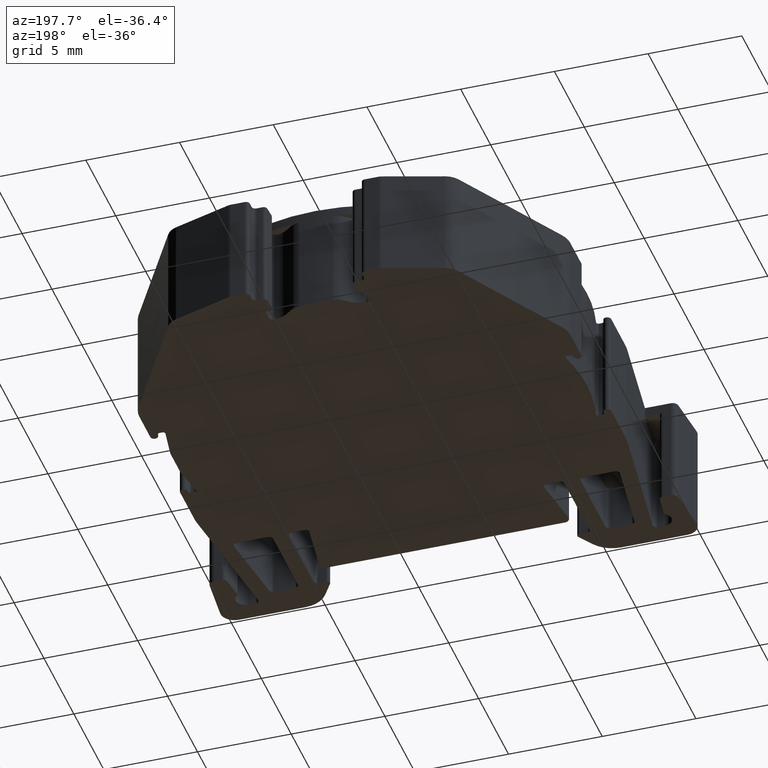
[diagram: clean part render]
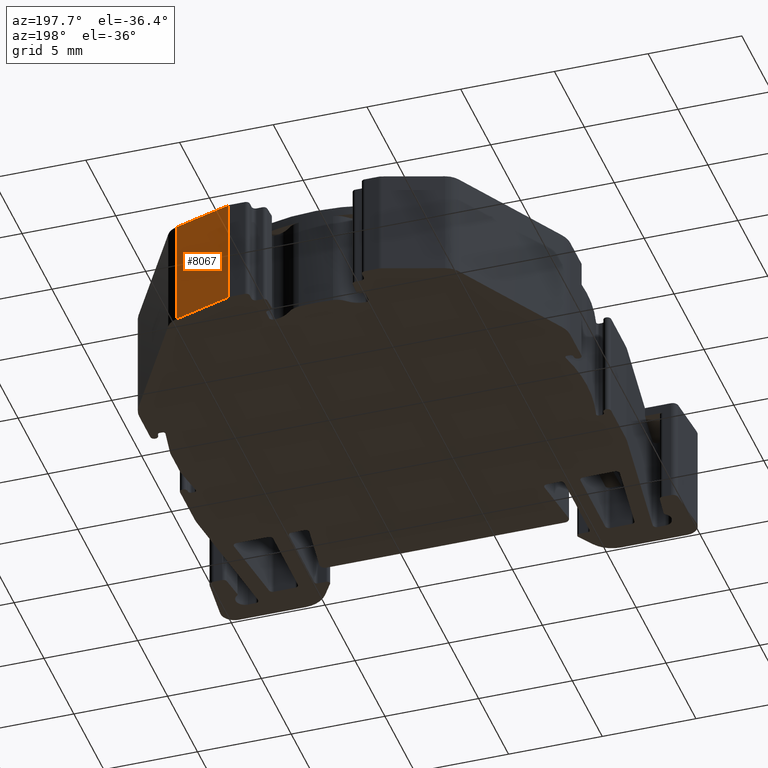
[diagram: same view with one face highlighted and labeled with its STEP entity id]
A machine part, auxiliary view. The second image highlights one B-rep face of the part: STEP entity #8067.
In plain terms, the highlighted planar face has unit normal (-0.3007, -0.9537, 0).
Its self-contained STEP definition (entity closure, byte-faithful):
#454 = CARTESIAN_POINT ( 'NONE',  ( 1189.995789931909940, 604.9167956440979879, 0.000000000000000000 ) ) ;
#893 = CARTESIAN_POINT ( 'NONE',  ( 1186.911258313420149, 605.8893447276670940, 5.799999999999999822 ) ) ;
#980 = EDGE_CURVE ( 'NONE', #7206, #6702, #5837, .T. ) ;
#1315 = EDGE_CURVE ( 'NONE', #6702, #5646, #8441, .T. ) ;
#1359 = PLANE ( 'NONE',  #7040 ) ;
#1533 = VECTOR ( 'NONE', #1580, 1000.000000000000000 ) ;
#1556 = LINE ( 'NONE', #893, #8704 ) ;
#1580 = DIRECTION ( 'NONE',  ( 0.000000000000000000, 0.000000000000000000, -1.000000000000000000 ) ) ;
#1880 = EDGE_LOOP ( 'NONE', ( #4273, #2069, #2562, #6554 ) ) ;
#2069 = ORIENTED_EDGE ( 'NONE', *, *, #1315, .T. ) ;
#2395 = DIRECTION ( 'NONE',  ( -0.9537169507482131658, 0.3007057995043164733, 0.000000000000000000 ) ) ;
#2562 = ORIENTED_EDGE ( 'NONE', *, *, #3618, .F. ) ;
#2671 = FACE_OUTER_BOUND ( 'NONE', #1880, .T. ) ;
#3118 = CARTESIAN_POINT ( 'NONE',  ( 1186.911258313420149, 605.8893447276670940, 5.799999999999999822 ) ) ;
#3567 = DIRECTION ( 'NONE',  ( -0.9537169507482131658, 0.3007057995043164733, 0.000000000000000000 ) ) ;
#3618 = EDGE_CURVE ( 'NONE', #3649, #5646, #4335, .T. ) ;
#3649 = VERTEX_POINT ( 'NONE', #4388 ) ;
#3774 = VECTOR ( 'NONE', #2395, 1000.000000000000114 ) ;
#3905 = DIRECTION ( 'NONE',  ( -0.3007057995043165843, -0.9537169507482132769, 0.000000000000000000 ) ) ;
#4273 = ORIENTED_EDGE ( 'NONE', *, *, #980, .T. ) ;
#4335 = LINE ( 'NONE', #3118, #1533 ) ;
#4388 = CARTESIAN_POINT ( 'NONE',  ( 1186.911258313420149, 605.8893447276670940, 5.799999999999999822 ) ) ;
#4544 = EDGE_CURVE ( 'NONE', #7206, #3649, #1556, .T. ) ;
#4663 = DIRECTION ( 'NONE',  ( 0.9537169507482131658, -0.3007057995043165288, 0.000000000000000000 ) ) ;
#5093 = CARTESIAN_POINT ( 'NONE',  ( 1189.995789931909940, 604.9167956440979879, 5.799999999999999822 ) ) ;
#5570 = CARTESIAN_POINT ( 'NONE',  ( 1186.911258313420149, 605.8893447276670940, 0.000000000000000000 ) ) ;
#5646 = VERTEX_POINT ( 'NONE', #5570 ) ;
#5823 = VECTOR ( 'NONE', #7164, 1000.000000000000000 ) ;
#5837 = LINE ( 'NONE', #5093, #5823 ) ;
#6043 = CARTESIAN_POINT ( 'NONE',  ( 1189.995789931909940, 604.9167956440979879, 5.799999999999999822 ) ) ;
#6406 = CARTESIAN_POINT ( 'NONE',  ( 1186.911258313420149, 605.8893447276670940, 0.000000000000000000 ) ) ;
#6554 = ORIENTED_EDGE ( 'NONE', *, *, #4544, .F. ) ;
#6702 = VERTEX_POINT ( 'NONE', #454 ) ;
#7040 = AXIS2_PLACEMENT_3D ( 'NONE', #7268, #3905, #4663 ) ;
#7164 = DIRECTION ( 'NONE',  ( 0.000000000000000000, 0.000000000000000000, -1.000000000000000000 ) ) ;
#7206 = VERTEX_POINT ( 'NONE', #6043 ) ;
#7268 = CARTESIAN_POINT ( 'NONE',  ( 1186.911258313420149, 605.8893447276670940, 5.799999999999999822 ) ) ;
#8067 = ADVANCED_FACE ( 'NONE', ( #2671 ), #1359, .F. ) ;
#8441 = LINE ( 'NONE', #6406, #3774 ) ;
#8704 = VECTOR ( 'NONE', #3567, 1000.000000000000114 ) ;